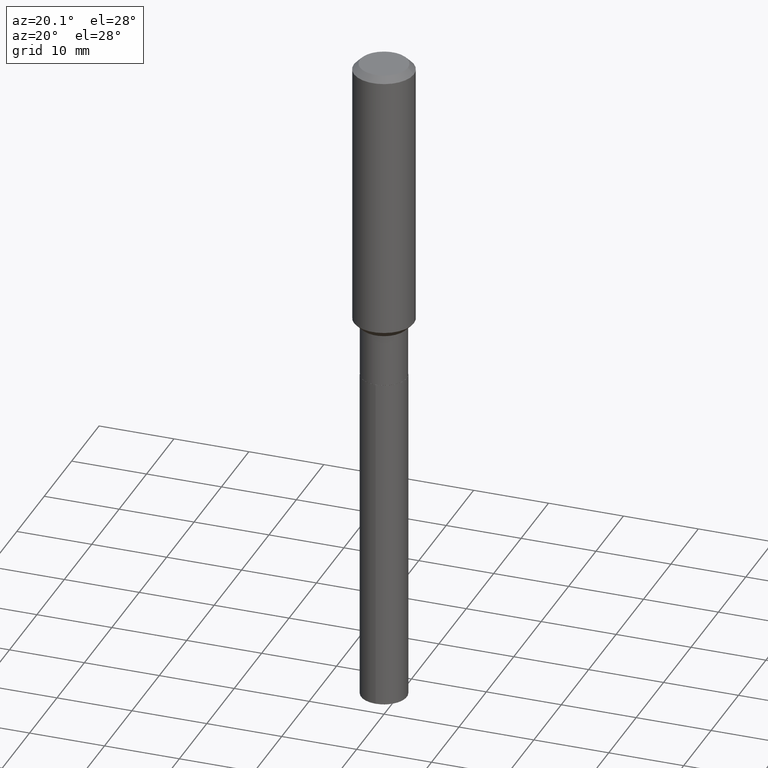
[diagram: clean part render]
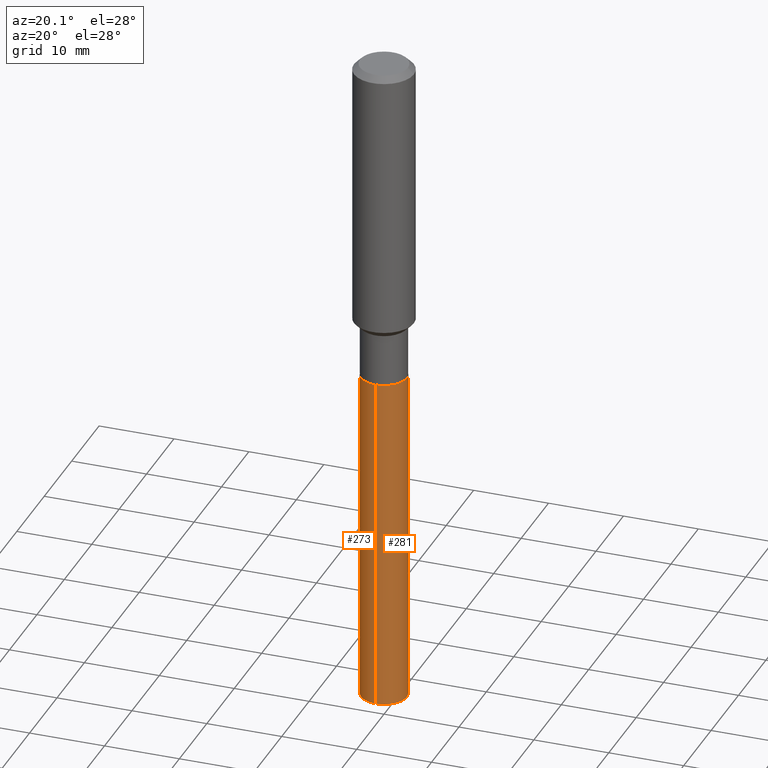
[diagram: same view with one multi-face feature highlighted, each face labeled with its STEP entity id]
A machine part, auxiliary view. The highlighted faces form ONE feature: a constant-radius fillet chain: 2 tangent blend faces with common blend radius 3.0505 mm. The faces share edges in the B-rep.
Their STEP definitions:
[1] entity #273 (Cylinder):
#30 = DIRECTION ( 'NONE',  ( -6.982962677686265922E-15, -1.000000000000000000, 4.549288915344318469E-15 ) ) ;
#33 = CARTESIAN_POINT ( 'NONE',  ( -8.386538175900780871E-16, -0.1201000000000060630, -1.736299999999999732 ) ) ;
#43 = AXIS2_PLACEMENT_3D ( 'NONE', #482, #113, #145 ) ;
#47 = CARTESIAN_POINT ( 'NONE',  ( -8.386538175900345025E-16, -0.1201000000000122803, -3.518841697257456325 ) ) ;
#57 = VECTOR ( 'NONE', #264, 39.37007874015748143 ) ;
#60 = EDGE_LOOP ( 'NONE', ( #282, #194, #414, #148 ) ) ;
#75 = VERTEX_POINT ( 'NONE', #468 ) ;
#96 = CIRCLE ( 'NONE', #445, 0.1200999999999999984 ) ;
#113 = DIRECTION ( 'NONE',  ( -2.445435805629381974E-29, 3.491528597517261474E-15, 1.000000000000000000 ) ) ;
#144 = CARTESIAN_POINT ( 'NONE',  ( 4.246067488179253683E-29, -6.062259048633354684E-15, -1.736300000000000177 ) ) ;
#145 = DIRECTION ( 'NONE',  ( -6.982962677686265922E-15, -1.000000000000000000, 4.549288915344318469E-15 ) ) ;
#148 = ORIENTED_EDGE ( 'NONE', *, *, #278, .F. ) ;
#163 = AXIS2_PLACEMENT_3D ( 'NONE', #144, #373, #30 ) ;
#183 = DIRECTION ( 'NONE',  ( -2.445435805629381974E-29, 3.491528597517261474E-15, 1.000000000000000000 ) ) ;
#194 = ORIENTED_EDGE ( 'NONE', *, *, #208, .T. ) ;
#203 = VERTEX_POINT ( 'NONE', #457 ) ;
#208 = EDGE_CURVE ( 'NONE', #203, #353, #411, .T. ) ;
#222 = CYLINDRICAL_SURFACE ( 'NONE', #163, 0.1200999999999999984 ) ;
#226 = FACE_OUTER_BOUND ( 'NONE', #60, .T. ) ;
#228 = DIRECTION ( 'NONE',  ( -2.445435805629382254E-29, 3.491528597517261474E-15, 1.000000000000000000 ) ) ;
#261 = CARTESIAN_POINT ( 'NONE',  ( 4.246067488179253683E-29, -6.062259048633354684E-15, -1.736300000000000177 ) ) ;
#264 = DIRECTION ( 'NONE',  ( -2.445435805629382254E-29, 3.491528597517261474E-15, 1.000000000000000000 ) ) ;
#273 = ADVANCED_FACE ( 'NONE', ( #226 ), #222, .T. ) ;
#278 = EDGE_CURVE ( 'NONE', #75, #315, #96, .T. ) ;
#282 = ORIENTED_EDGE ( 'NONE', *, *, #476, .F. ) ;
#286 = VECTOR ( 'NONE', #228, 39.37007874015748143 ) ;
#296 = CARTESIAN_POINT ( 'NONE',  ( 8.533618256479227133E-16, 0.1200999999999939477, -1.736300000000000843 ) ) ;
#312 = EDGE_CURVE ( 'NONE', #353, #315, #413, .T. ) ;
#315 = VERTEX_POINT ( 'NONE', #33 ) ;
#324 = LINE ( 'NONE', #296, #286 ) ;
#340 = DIRECTION ( 'NONE',  ( -6.982962677686265922E-15, -1.000000000000000000, 4.549288915344318469E-15 ) ) ;
#353 = VERTEX_POINT ( 'NONE', #47 ) ;
#373 = DIRECTION ( 'NONE',  ( -2.445435805629381974E-29, 3.491528597517261474E-15, 1.000000000000000000 ) ) ;
#377 = CARTESIAN_POINT ( 'NONE',  ( -8.386538175900780871E-16, -0.1201000000000060630, -1.736299999999999732 ) ) ;
#411 = CIRCLE ( 'NONE', #43, 0.1200999999999999984 ) ;
#413 = LINE ( 'NONE', #377, #57 ) ;
#414 = ORIENTED_EDGE ( 'NONE', *, *, #312, .T. ) ;
#445 = AXIS2_PLACEMENT_3D ( 'NONE', #261, #183, #340 ) ;
#457 = CARTESIAN_POINT ( 'NONE',  ( 8.533618256479661007E-16, 0.1200999999999877166, -3.518841697257457657 ) ) ;
#468 = CARTESIAN_POINT ( 'NONE',  ( 8.533618256479665937E-16, 0.1200999999999939477, -1.736300000000000843 ) ) ;
#476 = EDGE_CURVE ( 'NONE', #203, #75, #324, .T. ) ;
#482 = CARTESIAN_POINT ( 'NONE',  ( 8.605158779680008010E-29, -1.228605436087472145E-14, -3.518841697257456769 ) ) ;
[2] entity #281 (Cylinder):
#14 = EDGE_CURVE ( 'NONE', #353, #203, #331, .T. ) ;
#33 = CARTESIAN_POINT ( 'NONE',  ( -8.386538175900780871E-16, -0.1201000000000060630, -1.736299999999999732 ) ) ;
#47 = CARTESIAN_POINT ( 'NONE',  ( -8.386538175900345025E-16, -0.1201000000000122803, -3.518841697257456325 ) ) ;
#56 = EDGE_CURVE ( 'NONE', #315, #75, #379, .T. ) ;
#57 = VECTOR ( 'NONE', #264, 39.37007874015748143 ) ;
#66 = DIRECTION ( 'NONE',  ( -2.445435805629381974E-29, 3.491528597517261474E-15, 1.000000000000000000 ) ) ;
#69 = ORIENTED_EDGE ( 'NONE', *, *, #14, .T. ) ;
#75 = VERTEX_POINT ( 'NONE', #468 ) ;
#106 = FACE_OUTER_BOUND ( 'NONE', #461, .T. ) ;
#125 = DIRECTION ( 'NONE',  ( -6.982962677686265922E-15, -1.000000000000000000, 4.549288915344318469E-15 ) ) ;
#130 = DIRECTION ( 'NONE',  ( -6.982962677686265922E-15, -1.000000000000000000, 4.549288915344318469E-15 ) ) ;
#202 = ORIENTED_EDGE ( 'NONE', *, *, #476, .T. ) ;
#203 = VERTEX_POINT ( 'NONE', #457 ) ;
#213 = CARTESIAN_POINT ( 'NONE',  ( 4.246067488179253683E-29, -6.062259048633354684E-15, -1.736300000000000177 ) ) ;
#224 = DIRECTION ( 'NONE',  ( -6.982962677686265922E-15, -1.000000000000000000, 4.549288915344318469E-15 ) ) ;
#228 = DIRECTION ( 'NONE',  ( -2.445435805629382254E-29, 3.491528597517261474E-15, 1.000000000000000000 ) ) ;
#260 = CYLINDRICAL_SURFACE ( 'NONE', #409, 0.1200999999999999984 ) ;
#264 = DIRECTION ( 'NONE',  ( -2.445435805629382254E-29, 3.491528597517261474E-15, 1.000000000000000000 ) ) ;
#281 = ADVANCED_FACE ( 'NONE', ( #106 ), #260, .T. ) ;
#286 = VECTOR ( 'NONE', #228, 39.37007874015748143 ) ;
#296 = CARTESIAN_POINT ( 'NONE',  ( 8.533618256479227133E-16, 0.1200999999999939477, -1.736300000000000843 ) ) ;
#312 = EDGE_CURVE ( 'NONE', #353, #315, #413, .T. ) ;
#315 = VERTEX_POINT ( 'NONE', #33 ) ;
#318 = DIRECTION ( 'NONE',  ( -2.445435805629381974E-29, 3.491528597517261474E-15, 1.000000000000000000 ) ) ;
#324 = LINE ( 'NONE', #296, #286 ) ;
#331 = CIRCLE ( 'NONE', #372, 0.1200999999999999984 ) ;
#353 = VERTEX_POINT ( 'NONE', #47 ) ;
#355 = CARTESIAN_POINT ( 'NONE',  ( 8.605158779680008010E-29, -1.228605436087472145E-14, -3.518841697257456769 ) ) ;
#372 = AXIS2_PLACEMENT_3D ( 'NONE', #355, #408, #130 ) ;
#377 = CARTESIAN_POINT ( 'NONE',  ( -8.386538175900780871E-16, -0.1201000000000060630, -1.736299999999999732 ) ) ;
#379 = CIRCLE ( 'NONE', #417, 0.1200999999999999984 ) ;
#390 = ORIENTED_EDGE ( 'NONE', *, *, #312, .F. ) ;
#408 = DIRECTION ( 'NONE',  ( -2.445435805629381974E-29, 3.491528597517261474E-15, 1.000000000000000000 ) ) ;
#409 = AXIS2_PLACEMENT_3D ( 'NONE', #412, #66, #224 ) ;
#412 = CARTESIAN_POINT ( 'NONE',  ( 4.246067488179253683E-29, -6.062259048633354684E-15, -1.736300000000000177 ) ) ;
#413 = LINE ( 'NONE', #377, #57 ) ;
#417 = AXIS2_PLACEMENT_3D ( 'NONE', #213, #318, #125 ) ;
#457 = CARTESIAN_POINT ( 'NONE',  ( 8.533618256479661007E-16, 0.1200999999999877166, -3.518841697257457657 ) ) ;
#459 = ORIENTED_EDGE ( 'NONE', *, *, #56, .F. ) ;
#461 = EDGE_LOOP ( 'NONE', ( #69, #202, #459, #390 ) ) ;
#468 = CARTESIAN_POINT ( 'NONE',  ( 8.533618256479665937E-16, 0.1200999999999939477, -1.736300000000000843 ) ) ;
#476 = EDGE_CURVE ( 'NONE', #203, #75, #324, .T. ) ;